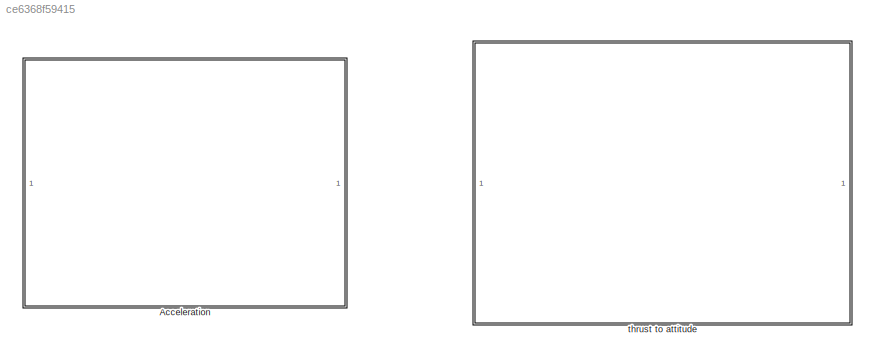
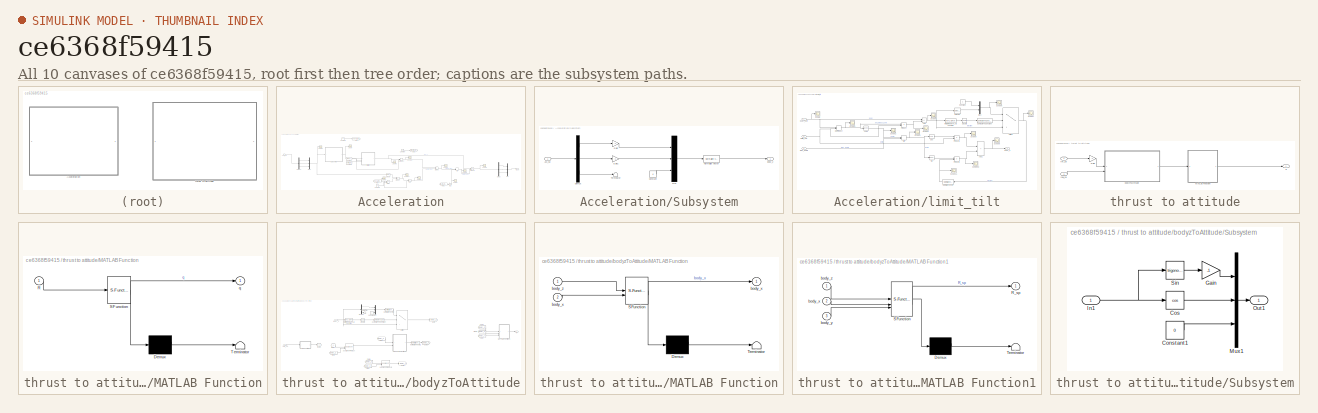
[diagram: thumbnail index - all 10 canvases of the model, root first then tree order]
MODEL slx_ce6368f59415
KIND model
CONFIG AbsTol = auto
CONFIG EnableMultiTasking = off
CONFIG FixedStep = auto
CONFIG MaxStep = auto
CONFIG MinStep = auto
CONFIG RelTol = 1e-3
CONFIG SampleTimeConstraint = Unconstrained
CONFIG SolverName = VariableStepAuto
CONFIG StartTime = 0.0
CONFIG StopTime = 10.0
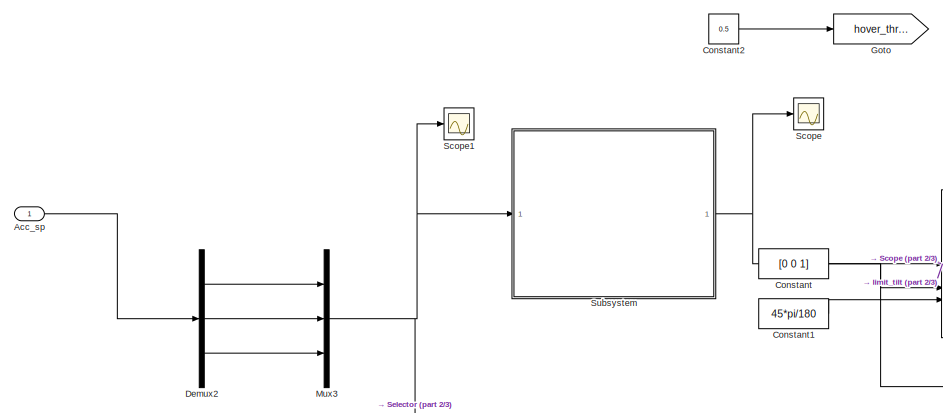
[diagram: Acceleration - part 1/3, middle left region]
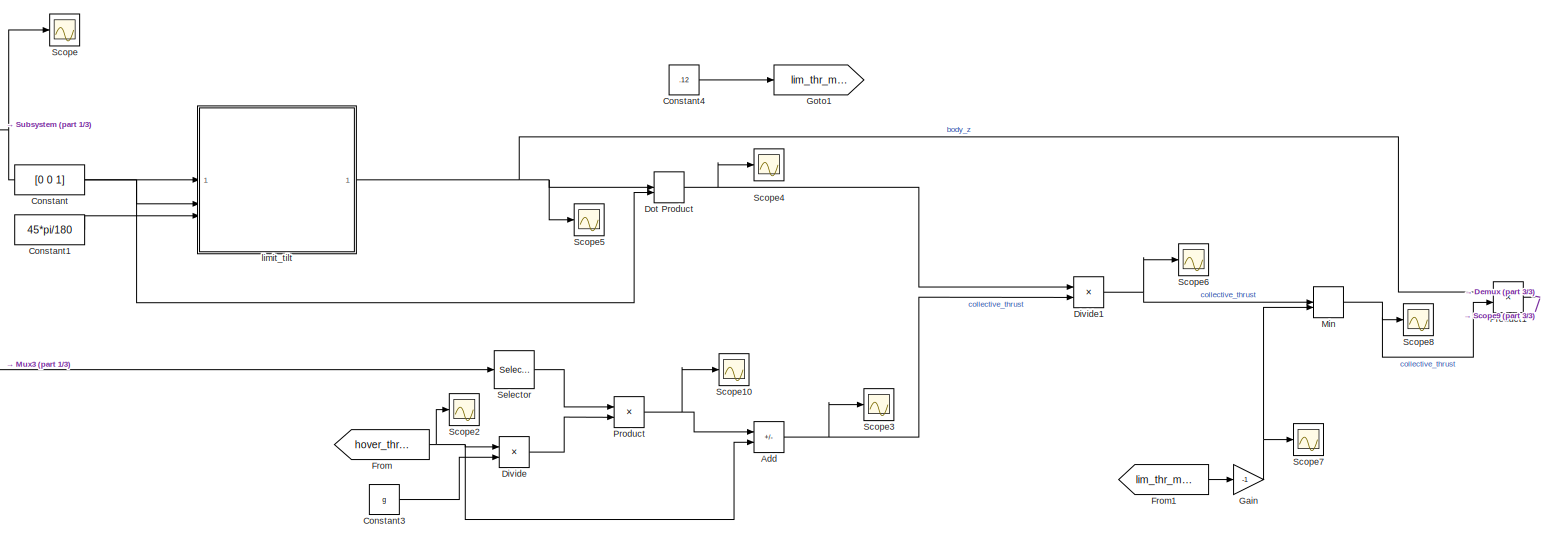
[diagram: Acceleration - part 2/3, center side, full height]
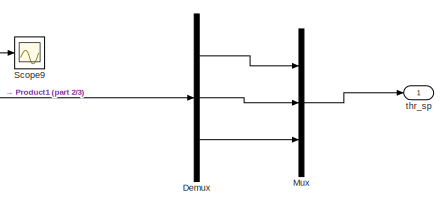
[diagram: Acceleration - part 3/3, middle right region]
BLOCK [SubSystem] Acceleration
BLOCK [Inport] Acceleration/Acc_sp
BLOCK [Sum] Acceleration/Add
  IconShape = rectangular
  Inputs = +-
BLOCK [Constant] Acceleration/Constant
  Value = [0 0 1]
BLOCK [Constant] Acceleration/Constant1
  Value = 45*pi/180
BLOCK [Constant] Acceleration/Constant2
  Value = 0.5
BLOCK [Constant] Acceleration/Constant3
  Value = g
BLOCK [Constant] Acceleration/Constant4
  Value = .12
BLOCK [Demux] Acceleration/Demux
  Outputs = 3
BLOCK [Demux] Acceleration/Demux2
  Outputs = 3
BLOCK [Product] Acceleration/Divide
  Inputs = */
BLOCK [Product] Acceleration/Divide1
  Inputs = /*
BLOCK [DotProduct] Acceleration/Dot Product
  OutDataTypeStr = Inherit: Inherit via internal rule
BLOCK [From] Acceleration/From
  GotoTag = hover_thrust
  TagVisibility = global
BLOCK [From] Acceleration/From1
  GotoTag = lim_thr_min
  TagVisibility = global
BLOCK [Gain] Acceleration/Gain
  Gain = -1
BLOCK [Goto] Acceleration/Goto
  GotoTag = hover_thrust
  TagVisibility = global
BLOCK [Goto] Acceleration/Goto1
  GotoTag = lim_thr_min
  TagVisibility = global
BLOCK [MinMax] Acceleration/Min
  Inputs = 2
BLOCK [Mux] Acceleration/Mux
  DisplayOption = bar
  Inputs = 3
BLOCK [Mux] Acceleration/Mux3
  DisplayOption = bar
  Inputs = 3
BLOCK [Product] Acceleration/Product
BLOCK [Product] Acceleration/Product1
BLOCK [Scope] Acceleration/Scope
  Floating = off
  NumInputPorts = 1
  ScopeSpecificationString = Simulink.scopes.TimeScopeBlockCfg('CurrentConfiguration', extmgr.ConfigurationSet(extmgr.Configuration('Core','General UI',true),extmgr.Configuration('Core','Source UI',true),extmgr.Configuration('Sources','WiredSimulink',true,'DataLoggingVariableName','ScopeData9'),extmgr.Configuration('Visuals','Time Domain',true,'SerializedDisplays',{struct('MinYLimReal','-0.125','MaxYLimReal','1.125','YLabelRe...<+1748ch>
BLOCK [Scope] Acceleration/Scope1
  Floating = off
  NumInputPorts = 1
  ScopeSpecificationString = Simulink.scopes.TimeScopeBlockCfg('CurrentConfiguration', extmgr.ConfigurationSet(extmgr.Configuration('Core','General UI',true),extmgr.Configuration('Core','Source UI',true),extmgr.Configuration('Sources','WiredSimulink',true,'DataLoggingVariableName','ScopeData10'),extmgr.Configuration('Visuals','Time Domain',true,'SerializedDisplays',{struct('MinYLimReal','-882.88599','MaxYLimReal','102.54289',...<+1744ch>
BLOCK [Scope] Acceleration/Scope10
  Floating = off
  NumInputPorts = 1
  ScopeSpecificationString = Simulink.scopes.TimeScopeBlockCfg('CurrentConfiguration', extmgr.ConfigurationSet(extmgr.Configuration('Core','General UI',true),extmgr.Configuration('Core','Source UI',true),extmgr.Configuration('Sources','WiredSimulink',true,'DataLoggingVariableName','ScopeData33'),extmgr.Configuration('Visuals','Time Domain',true,'SerializedDisplays',{struct('MinYLimReal','-45.0452','MaxYLimReal','5.23178','YLa...<+1677ch>
BLOCK [Scope] Acceleration/Scope2
  Floating = off
  NumInputPorts = 1
  ScopeSpecificationString = Simulink.scopes.TimeScopeBlockCfg('CurrentConfiguration', extmgr.ConfigurationSet(extmgr.Configuration('Core','General UI',true),extmgr.Configuration('Core','Source UI',true),extmgr.Configuration('Sources','WiredSimulink',true,'DataLoggingVariableName','ScopeData19'),extmgr.Configuration('Visuals','Time Domain',true,'SerializedDisplays',{struct('MinYLimReal','0.4','MaxYLimReal','0.6','YLabelReal',...<+1667ch>
BLOCK [Scope] Acceleration/Scope3
  Floating = off
  NumInputPorts = 1
  ScopeSpecificationString = Simulink.scopes.TimeScopeBlockCfg('CurrentConfiguration', extmgr.ConfigurationSet(extmgr.Configuration('Core','General UI',true),extmgr.Configuration('Core','Source UI',true),extmgr.Configuration('Sources','WiredSimulink',true,'DataLoggingVariableName','ScopeData24'),extmgr.Configuration('Visuals','Time Domain',true,'SerializedDisplays',{struct('MinYLimReal','-4.92384','MaxYLimReal','0.2183','YLab...<+1687ch>
BLOCK [Scope] Acceleration/Scope4
  Floating = off
  NumInputPorts = 1
  ScopeSpecificationString = Simulink.scopes.TimeScopeBlockCfg('CurrentConfiguration', extmgr.ConfigurationSet(extmgr.Configuration('Core','General UI',true),extmgr.Configuration('Core','Source UI',true),extmgr.Configuration('Sources','WiredSimulink',true,'DataLoggingVariableName','ScopeData25'),extmgr.Configuration('Visuals','Time Domain',true,'SerializedDisplays',{struct('MinYLimReal','0.9','MaxYLimReal','1.1','YLabelReal',...<+1337ch>
BLOCK [Scope] Acceleration/Scope5
  Floating = off
  NumInputPorts = 1
  ScopeSpecificationString = Simulink.scopes.TimeScopeBlockCfg('CurrentConfiguration', extmgr.ConfigurationSet(extmgr.Configuration('Core','General UI',true),extmgr.Configuration('Core','Source UI',true),extmgr.Configuration('Sources','WiredSimulink',true,'DataLoggingVariableName','ScopeData26'),extmgr.Configuration('Visuals','Time Domain',true),extmgr.Configuration('Tools','Plot Navigation',true),extmgr.Configuration('Tools'...<+41ch>
BLOCK [Scope] Acceleration/Scope6
  Floating = off
  NumInputPorts = 1
  ScopeSpecificationString = Simulink.scopes.TimeScopeBlockCfg('CurrentConfiguration', extmgr.ConfigurationSet(extmgr.Configuration('Core','General UI',true),extmgr.Configuration('Core','Source UI',true),extmgr.Configuration('Sources','WiredSimulink',true,'DataLoggingVariableName','ScopeData27'),extmgr.Configuration('Visuals','Time Domain',true,'SerializedDisplays',{struct('MinYLimReal','-4.92384','MaxYLimReal','0.2183','YLab...<+1687ch>
BLOCK [Scope] Acceleration/Scope7
  Floating = off
  NumInputPorts = 1
  ScopeSpecificationString = Simulink.scopes.TimeScopeBlockCfg('CurrentConfiguration', extmgr.ConfigurationSet(extmgr.Configuration('Core','General UI',true),extmgr.Configuration('Core','Source UI',true),extmgr.Configuration('Sources','WiredSimulink',true,'DataLoggingVariableName','ScopeData28'),extmgr.Configuration('Visuals','Time Domain',true,'SerializedDisplays',{struct('MinYLimReal','-0.22','MaxYLimReal','-0.02','YLabelRe...<+1383ch>
BLOCK [Scope] Acceleration/Scope8
  Floating = off
  NumInputPorts = 1
  ScopeSpecificationString = Simulink.scopes.TimeScopeBlockCfg('CurrentConfiguration', extmgr.ConfigurationSet(extmgr.Configuration('Core','General UI',true),extmgr.Configuration('Core','Source UI',true),extmgr.Configuration('Sources','WiredSimulink',true,'DataLoggingVariableName','ScopeData29'),extmgr.Configuration('Visuals','Time Domain',true,'SerializedDisplays',{struct('MinYLimReal','-4.92384','MaxYLimReal','0.2183','YLab...<+1687ch>
BLOCK [Scope] Acceleration/Scope9
  Floating = off
  NumInputPorts = 1
  ScopeSpecificationString = Simulink.scopes.TimeScopeBlockCfg('CurrentConfiguration', extmgr.ConfigurationSet(extmgr.Configuration('Core','General UI',true),extmgr.Configuration('Core','Source UI',true),extmgr.Configuration('Sources','WiredSimulink',true,'DataLoggingVariableName','ScopeData30'),extmgr.Configuration('Visuals','Time Domain',true,'SerializedDisplays',{struct('MinYLimReal','-4.96083','MaxYLimReal','0.5512','YLab...<+1739ch>
BLOCK [Selector] Acceleration/Selector
  IndexOptions = Index vector (dialog)
  Indices = [3]
  InputPortWidth = 3
  OutputSizes = 1
BLOCK [SubSystem] Acceleration/Subsystem
BLOCK [Inport] Acceleration/Subsystem/Acc_sp
BLOCK [Constant] Acceleration/Subsystem/Constant
  Value = g
BLOCK [Demux] Acceleration/Subsystem/Demux
  Outputs = 3
BLOCK [Gain] Acceleration/Subsystem/Gain
  Gain = -1
BLOCK [Gain] Acceleration/Subsystem/Gain1
  Gain = -1
BLOCK [Mux] Acceleration/Subsystem/Mux
  DisplayOption = bar
  Inputs = 3
BLOCK [Reference] Acceleration/Subsystem/Normalize Vector  REF=vrlib/Utilities/Normalize Vector
  SourceBlock = vrlib/Utilities/Normalize Vector
  SourceType = Normalize Vector
BLOCK [Terminator] Acceleration/Subsystem/Terminator
BLOCK [Outport] Acceleration/Subsystem/body_z
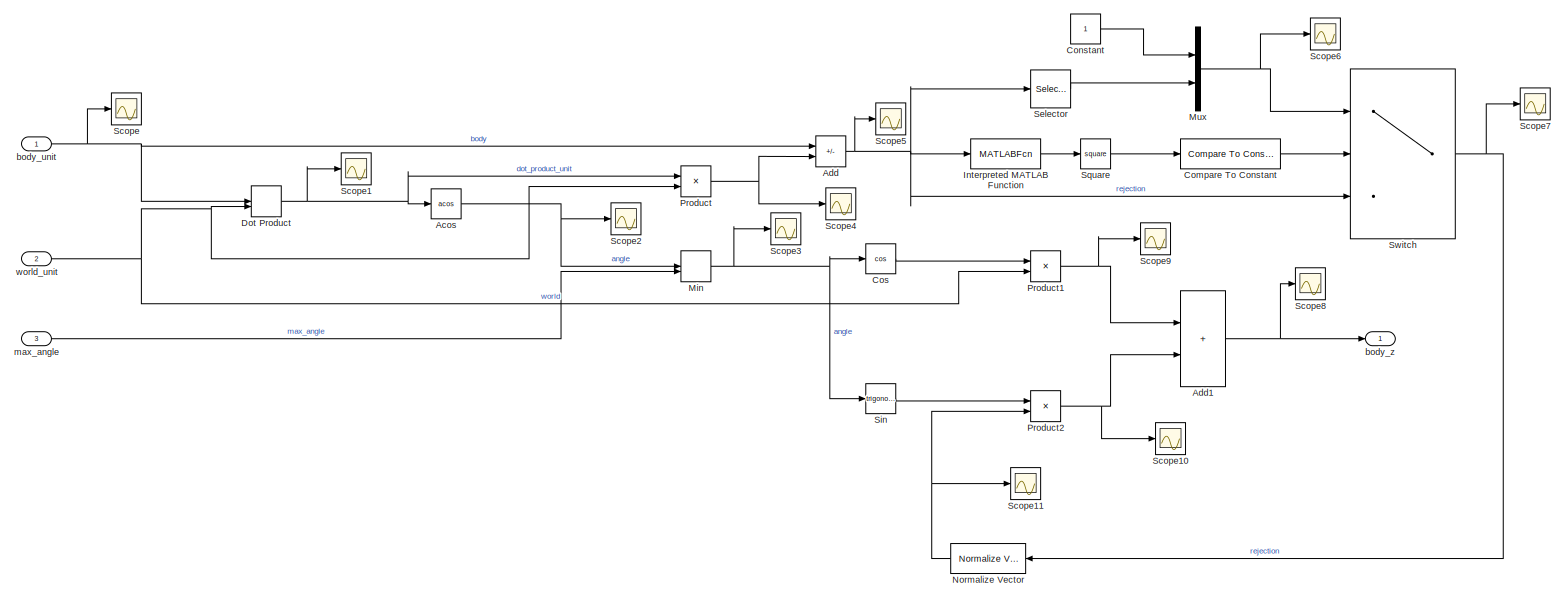
[diagram: Acceleration/limit_tilt - part 1/1, most of the canvas]
BLOCK [SubSystem] Acceleration/limit_tilt
BLOCK [Trigonometry] Acceleration/limit_tilt/Acos
  Operator = acos
BLOCK [Sum] Acceleration/limit_tilt/Add
  IconShape = rectangular
  Inputs = +-
BLOCK [Sum] Acceleration/limit_tilt/Add1
  IconShape = rectangular
BLOCK [Reference] Acceleration/limit_tilt/Compare To Constant  REF=simulink/Logic and Bit
Operations/Compare
To Constant
  SourceBlock = simulink/Logic and Bit\nOperations/Compare\nTo Constant
  SourceType = Compare To Constant
BLOCK [Constant] Acceleration/limit_tilt/Constant
BLOCK [Trigonometry] Acceleration/limit_tilt/Cos
  Operator = cos
BLOCK [DotProduct] Acceleration/limit_tilt/Dot Product
  OutDataTypeStr = Inherit: Inherit via internal rule
BLOCK [MATLABFcn] Acceleration/limit_tilt/Interpreted MATLAB Function
  MATLABFcn = norm
BLOCK [MinMax] Acceleration/limit_tilt/Min
  Inputs = 2
BLOCK [Mux] Acceleration/limit_tilt/Mux
  DisplayOption = bar
  Inputs = 2
BLOCK [Reference] Acceleration/limit_tilt/Normalize Vector  REF=vrlib/Utilities/Normalize Vector
  NameLocation = top
  SourceBlock = vrlib/Utilities/Normalize Vector
  SourceType = Normalize Vector
BLOCK [Product] Acceleration/limit_tilt/Product
BLOCK [Product] Acceleration/limit_tilt/Product1
BLOCK [Product] Acceleration/limit_tilt/Product2
BLOCK [Scope] Acceleration/limit_tilt/Scope
  Floating = off
  NumInputPorts = 1
  ScopeSpecificationString = Simulink.scopes.TimeScopeBlockCfg('CurrentConfiguration', extmgr.ConfigurationSet(extmgr.Configuration('Core','General UI',true),extmgr.Configuration('Core','Source UI',true),extmgr.Configuration('Sources','WiredSimulink',true,'DataLoggingVariableName','ScopeData11'),extmgr.Configuration('Visuals','Time Domain',true,'SerializedDisplays',{struct('MinYLimReal','-0.125','MaxYLimReal','1.125','YLabelR...<+1715ch>
BLOCK [Scope] Acceleration/limit_tilt/Scope1
  Floating = off
  NumInputPorts = 1
  ScopeSpecificationString = Simulink.scopes.TimeScopeBlockCfg('CurrentConfiguration', extmgr.ConfigurationSet(extmgr.Configuration('Core','General UI',true),extmgr.Configuration('Core','Source UI',true),extmgr.Configuration('Sources','WiredSimulink',true,'DataLoggingVariableName','ScopeData12'),extmgr.Configuration('Visuals','Time Domain',true,'SerializedDisplays',{struct('MinYLimReal','0.9','MaxYLimReal','1.1','YLabelReal',...<+1342ch>
BLOCK [Scope] Acceleration/limit_tilt/Scope10
  Floating = off
  NumInputPorts = 1
  ScopeSpecificationString = Simulink.scopes.TimeScopeBlockCfg('CurrentConfiguration', extmgr.ConfigurationSet(extmgr.Configuration('Core','General UI',true),extmgr.Configuration('Core','Source UI',true),extmgr.Configuration('Sources','WiredSimulink',true,'DataLoggingVariableName','ScopeData22'),extmgr.Configuration('Visuals','Time Domain',true),extmgr.Configuration('Tools','Plot Navigation',true),extmgr.Configuration('Tools'...<+41ch>
BLOCK [Scope] Acceleration/limit_tilt/Scope11
  Floating = off
  NumInputPorts = 1
  ScopeSpecificationString = Simulink.scopes.TimeScopeBlockCfg('CurrentConfiguration', extmgr.ConfigurationSet(extmgr.Configuration('Core','General UI',true),extmgr.Configuration('Core','Source UI',true),extmgr.Configuration('Sources','WiredSimulink',true,'DataLoggingVariableName','ScopeData23'),extmgr.Configuration('Visuals','Time Domain',true),extmgr.Configuration('Tools','Plot Navigation',true),extmgr.Configuration('Tools'...<+41ch>
BLOCK [Scope] Acceleration/limit_tilt/Scope2
  Floating = off
  NumInputPorts = 1
  ScopeSpecificationString = Simulink.scopes.TimeScopeBlockCfg('CurrentConfiguration', extmgr.ConfigurationSet(extmgr.Configuration('Core','General UI',true),extmgr.Configuration('Core','Source UI',true),extmgr.Configuration('Sources','WiredSimulink',true,'DataLoggingVariableName','ScopeData13'),extmgr.Configuration('Visuals','Time Domain',true,'SerializedDisplays',{struct('MinYLimReal','-1.00000','MaxYLimReal','1.00000','YLa...<+1365ch>
BLOCK [Scope] Acceleration/limit_tilt/Scope3
  Floating = off
  NumInputPorts = 1
  ScopeSpecificationString = Simulink.scopes.TimeScopeBlockCfg('CurrentConfiguration', extmgr.ConfigurationSet(extmgr.Configuration('Core','General UI',true),extmgr.Configuration('Core','Source UI',true),extmgr.Configuration('Sources','WiredSimulink',true,'DataLoggingVariableName','ScopeData14'),extmgr.Configuration('Visuals','Time Domain',true,'SerializedDisplays',{struct('MinYLimReal','-1.00000','MaxYLimReal','1.00000','YLa...<+1365ch>
BLOCK [Scope] Acceleration/limit_tilt/Scope4
  Floating = off
  NumInputPorts = 1
  ScopeSpecificationString = Simulink.scopes.TimeScopeBlockCfg('CurrentConfiguration', extmgr.ConfigurationSet(extmgr.Configuration('Core','General UI',true),extmgr.Configuration('Core','Source UI',true),extmgr.Configuration('Sources','WiredSimulink',true,'DataLoggingVariableName','ScopeData15'),extmgr.Configuration('Visuals','Time Domain',true,'SerializedDisplays',{struct('MinYLimReal','-0.125','MaxYLimReal','1.125','YLabelR...<+1726ch>
BLOCK [Scope] Acceleration/limit_tilt/Scope5
  Floating = off
  NumInputPorts = 1
  ScopeSpecificationString = Simulink.scopes.TimeScopeBlockCfg('CurrentConfiguration', extmgr.ConfigurationSet(extmgr.Configuration('Core','General UI',true),extmgr.Configuration('Core','Source UI',true),extmgr.Configuration('Sources','WiredSimulink',true,'DataLoggingVariableName','ScopeData16'),extmgr.Configuration('Visuals','Time Domain',true,'SerializedDisplays',{struct('MinYLimReal','-0.0000000000035','MaxYLimReal','0.000...<+1488ch>
BLOCK [Scope] Acceleration/limit_tilt/Scope6
  Floating = off
  NumInputPorts = 1
  ScopeSpecificationString = Simulink.scopes.TimeScopeBlockCfg('CurrentConfiguration', extmgr.ConfigurationSet(extmgr.Configuration('Core','General UI',true),extmgr.Configuration('Core','Source UI',true),extmgr.Configuration('Sources','WiredSimulink',true,'DataLoggingVariableName','ScopeData17'),extmgr.Configuration('Visuals','Time Domain',true,'SerializedDisplays',{struct('MinYLimReal','-0.125','MaxYLimReal','1.125','YLabelR...<+1740ch>
BLOCK [Scope] Acceleration/limit_tilt/Scope7
  Floating = off
  NumInputPorts = 1
  ScopeSpecificationString = Simulink.scopes.TimeScopeBlockCfg('CurrentConfiguration', extmgr.ConfigurationSet(extmgr.Configuration('Core','General UI',true),extmgr.Configuration('Core','Source UI',true),extmgr.Configuration('Sources','WiredSimulink',true,'DataLoggingVariableName','ScopeData18'),extmgr.Configuration('Visuals','Time Domain',true,'SerializedDisplays',{struct('MinYLimReal','-0.125','MaxYLimReal','1.125','YLabelR...<+1730ch>
BLOCK [Scope] Acceleration/limit_tilt/Scope8
  Floating = off
  NumInputPorts = 1
  ScopeSpecificationString = Simulink.scopes.TimeScopeBlockCfg('CurrentConfiguration', extmgr.ConfigurationSet(extmgr.Configuration('Core','General UI',true),extmgr.Configuration('Core','Source UI',true),extmgr.Configuration('Sources','WiredSimulink',true,'DataLoggingVariableName','ScopeData20'),extmgr.Configuration('Visuals','Time Domain',true),extmgr.Configuration('Tools','Plot Navigation',true),extmgr.Configuration('Tools'...<+41ch>
BLOCK [Scope] Acceleration/limit_tilt/Scope9
  Floating = off
  NumInputPorts = 1
  ScopeSpecificationString = Simulink.scopes.TimeScopeBlockCfg('CurrentConfiguration', extmgr.ConfigurationSet(extmgr.Configuration('Core','General UI',true),extmgr.Configuration('Core','Source UI',true),extmgr.Configuration('Sources','WiredSimulink',true,'DataLoggingVariableName','ScopeData21'),extmgr.Configuration('Visuals','Time Domain',true,'SerializedDisplays',{struct('MinYLimReal','-0.125','MaxYLimReal','1.125','YLabelR...<+1409ch>
BLOCK [Selector] Acceleration/limit_tilt/Selector
  IndexOptions = Index vector (dialog)
  Indices = [2 3]
  InputPortWidth = 3
  OutputSizes = 1
BLOCK [Trigonometry] Acceleration/limit_tilt/Sin
BLOCK [Math] Acceleration/limit_tilt/Square
  Operator = square
BLOCK [Switch] Acceleration/limit_tilt/Switch
  Criteria = u2 ~= 0
  InputSameDT = off
  SaturateOnIntegerOverflow = off
BLOCK [Inport] Acceleration/limit_tilt/body_unit
BLOCK [Outport] Acceleration/limit_tilt/body_z
BLOCK [Inport] Acceleration/limit_tilt/max_angle
  Port = 3
BLOCK [Inport] Acceleration/limit_tilt/world_unit
  Port = 2
BLOCK [Outport] Acceleration/thr_sp
BLOCK [SubSystem] thrust to attitude
BLOCK [Gain] thrust to attitude/Gain
  Gain = -1
BLOCK [SubSystem] thrust to attitude/MATLAB Function
  ErrorFcn = Stateflow.Translate.translate
  LibrarySourceBlock = simulink/User-Defined\nFunctions/MATLAB Function
  PermitHierarchicalResolution = ExplicitOnly
  SFBlockType = MATLAB Function
  TreatAsAtomicUnit = on
BLOCK [Demux] thrust to attitude/MATLAB Function/ Demux 
  Outputs = 1
BLOCK [S-Function] thrust to attitude/MATLAB Function/ SFunction 
  EnableBusSupport = on
  FunctionName = sf_sfun
  PortCounts = [1 2]
  SFcnIsStateOwnerBlock = off
  SFunctionDeploymentMode = off
  Tag = Stateflow S-Function 14
BLOCK [Terminator] thrust to attitude/MATLAB Function/ Terminator 
BLOCK [Inport] thrust to attitude/MATLAB Function/R
BLOCK [Outport] thrust to attitude/MATLAB Function/q
BLOCK [SubSystem] thrust to attitude/bodyzToAttitude
BLOCK [Reference] thrust to attitude/bodyzToAttitude/3x3 Cross Product  REF=sharedutil/3x3 Cross Product
  LibrarySourceBlock = aerolibutil/3x3 Cross Product
  SourceBlock = sharedutil/3x3 Cross Product
  SourceType = CrossProduct
BLOCK [Reference] thrust to attitude/bodyzToAttitude/3x3 Cross Product1  REF=sharedutil/3x3 Cross Product
  LibrarySourceBlock = aerolibutil/3x3 Cross Product
  SourceBlock = sharedutil/3x3 Cross Product
  SourceType = CrossProduct
BLOCK [Reference] thrust to attitude/bodyzToAttitude/Compare To Constant  REF=simulink/Logic and Bit
Operations/Compare
To Constant
  SourceBlock = simulink/Logic and Bit\nOperations/Compare\nTo Constant
  SourceType = Compare To Constant
BLOCK [Constant] thrust to attitude/bodyzToAttitude/Constant
BLOCK [Demux] thrust to attitude/bodyzToAttitude/Demux
  Outputs = 3
BLOCK [From] thrust to attitude/bodyzToAttitude/From
  GotoTag = body_z
BLOCK [From] thrust to attitude/bodyzToAttitude/From1
  GotoTag = y_c
BLOCK [From] thrust to attitude/bodyzToAttitude/From2
  GotoTag = body_z
BLOCK [From] thrust to attitude/bodyzToAttitude/From3
  GotoTag = body_z
BLOCK [From] thrust to attitude/bodyzToAttitude/From4
  GotoTag = body_x
BLOCK [From] thrust to attitude/bodyzToAttitude/From5
  GotoTag = body_z
BLOCK [From] thrust to attitude/bodyzToAttitude/From6
  GotoTag = body_x
BLOCK [From] thrust to attitude/bodyzToAttitude/From7
  GotoTag = body_y
BLOCK [Goto] thrust to attitude/bodyzToAttitude/Goto
  GotoTag = body_z
BLOCK [Goto] thrust to attitude/bodyzToAttitude/Goto1
  GotoTag = y_c
BLOCK [Goto] thrust to attitude/bodyzToAttitude/Goto2
  GotoTag = body_y
BLOCK [Goto] thrust to attitude/bodyzToAttitude/Goto3
  GotoTag = body_x
BLOCK [MATLABFcn] thrust to attitude/bodyzToAttitude/Interpreted MATLAB Function
  MATLABFcn = norm
BLOCK [SubSystem] thrust to attitude/bodyzToAttitude/MATLAB Function
  ErrorFcn = Stateflow.Translate.translate
  PermitHierarchicalResolution = ExplicitOnly
  SFBlockType = MATLAB Function
  TreatAsAtomicUnit = on
BLOCK [Demux] thrust to attitude/bodyzToAttitude/MATLAB Function/ Demux 
  Outputs = 1
BLOCK [S-Function] thrust to attitude/bodyzToAttitude/MATLAB Function/ SFunction 
  EnableBusSupport = on
  FunctionName = sf_sfun
  PortCounts = [2 2]
  SFcnIsStateOwnerBlock = off
  SFunctionDeploymentMode = off
  Tag = Stateflow S-Function 12
BLOCK [Terminator] thrust to attitude/bodyzToAttitude/MATLAB Function/ Terminator 
BLOCK [Outport] thrust to attitude/bodyzToAttitude/MATLAB Function/body_x
BLOCK [Inport] thrust to attitude/bodyzToAttitude/MATLAB Function/body_x 
  Port = 2
BLOCK [Inport] thrust to attitude/bodyzToAttitude/MATLAB Function/body_z
BLOCK [SubSystem] thrust to attitude/bodyzToAttitude/MATLAB Function1
  ErrorFcn = Stateflow.Translate.translate
  PermitHierarchicalResolution = ExplicitOnly
  SFBlockType = MATLAB Function
  TreatAsAtomicUnit = on
BLOCK [Demux] thrust to attitude/bodyzToAttitude/MATLAB Function1/ Demux 
  Outputs = 1
BLOCK [S-Function] thrust to attitude/bodyzToAttitude/MATLAB Function1/ SFunction 
  EnableBusSupport = on
  FunctionName = sf_sfun
  PortCounts = [3 2]
  SFcnIsStateOwnerBlock = off
  SFunctionDeploymentMode = off
  Tag = Stateflow S-Function 13
BLOCK [Terminator] thrust to attitude/bodyzToAttitude/MATLAB Function1/ Terminator 
BLOCK [Outport] thrust to attitude/bodyzToAttitude/MATLAB Function1/R_sp
BLOCK [Inport] thrust to attitude/bodyzToAttitude/MATLAB Function1/body_x
  Port = 2
BLOCK [Inport] thrust to attitude/bodyzToAttitude/MATLAB Function1/body_y
  Port = 3
BLOCK [Inport] thrust to attitude/bodyzToAttitude/MATLAB Function1/body_z
BLOCK [Mux] thrust to attitude/bodyzToAttitude/Mux
  DisplayOption = bar
  Inputs = 3
BLOCK [Reference] thrust to attitude/bodyzToAttitude/Normalize Vector1  REF=vrlib/Utilities/Normalize Vector
  SourceBlock = vrlib/Utilities/Normalize Vector
  SourceType = Normalize Vector
BLOCK [Reference] thrust to attitude/bodyzToAttitude/Normalize Vector2  REF=vrlib/Utilities/Normalize Vector
  SourceBlock = vrlib/Utilities/Normalize Vector
  SourceType = Normalize Vector
BLOCK [Outport] thrust to attitude/bodyzToAttitude/R
BLOCK [Math] thrust to attitude/bodyzToAttitude/Square
  Operator = square
BLOCK [SubSystem] thrust to attitude/bodyzToAttitude/Subsystem
BLOCK [Constant] thrust to attitude/bodyzToAttitude/Subsystem/Constant1
  Value = 0
BLOCK [Trigonometry] thrust to attitude/bodyzToAttitude/Subsystem/Cos
  Operator = cos
BLOCK [Gain] thrust to attitude/bodyzToAttitude/Subsystem/Gain
  Gain = -1
BLOCK [Inport] thrust to attitude/bodyzToAttitude/Subsystem/In1
BLOCK [Mux] thrust to attitude/bodyzToAttitude/Subsystem/Mux1
  DisplayOption = bar
  Inputs = 3
BLOCK [Outport] thrust to attitude/bodyzToAttitude/Subsystem/Out1
BLOCK [Trigonometry] thrust to attitude/bodyzToAttitude/Subsystem/Sin
BLOCK [Switch] thrust to attitude/bodyzToAttitude/Switch
  Criteria = u2 ~= 0
  InputSameDT = off
  SaturateOnIntegerOverflow = off
BLOCK [Terminator] thrust to attitude/bodyzToAttitude/Terminator
BLOCK [Inport] thrust to attitude/bodyzToAttitude/body_z
BLOCK [Inport] thrust to attitude/bodyzToAttitude/yaw_sp
  Port = 2
BLOCK [Outport] thrust to attitude/q
BLOCK [Inport] thrust to attitude/thr_sp
BLOCK [Inport] thrust to attitude/yaw_sp
  Port = 2
LINE Acceleration/Acc_sp:1 -> Acceleration/Demux2:1
NET Acceleration/Add:1 -> Acceleration/Divide1:2, Acceleration/Scope3:1
LINE Acceleration/Constant1:1 -> Acceleration/limit_tilt:3
LINE Acceleration/Constant2:1 -> Acceleration/Goto:1
LINE Acceleration/Constant3:1 -> Acceleration/Divide:2
LINE Acceleration/Constant4:1 -> Acceleration/Goto1:1
NET Acceleration/Constant:1 -> Acceleration/Dot Product:2, Acceleration/limit_tilt:2
LINE Acceleration/Demux2:1 -> Acceleration/Mux3:1
LINE Acceleration/Demux2:2 -> Acceleration/Mux3:2
LINE Acceleration/Demux2:3 -> Acceleration/Mux3:3
LINE Acceleration/Demux:1 -> Acceleration/Mux:1
LINE Acceleration/Demux:2 -> Acceleration/Mux:2
LINE Acceleration/Demux:3 -> Acceleration/Mux:3
NET Acceleration/Divide1:1 -> Acceleration/Min:1, Acceleration/Scope6:1
LINE Acceleration/Divide:1 -> Acceleration/Product:2
NET Acceleration/Dot Product:1 -> Acceleration/Divide1:1, Acceleration/Scope4:1
LINE Acceleration/From1:1 -> Acceleration/Gain:1
NET Acceleration/From:1 -> Acceleration/Add:2, Acceleration/Divide:1, Acceleration/Scope2:1
NET Acceleration/Gain:1 -> Acceleration/Min:2, Acceleration/Scope7:1
NET Acceleration/Min:1 -> Acceleration/Product1:2, Acceleration/Scope8:1
NET Acceleration/Mux3:1 -> Acceleration/Scope1:1, Acceleration/Selector:1, Acceleration/Subsystem:1
LINE Acceleration/Mux:1 -> Acceleration/thr_sp:1
NET Acceleration/Product1:1 -> Acceleration/Demux:1, Acceleration/Scope9:1
NET Acceleration/Product:1 -> Acceleration/Add:1, Acceleration/Scope10:1
LINE Acceleration/Selector:1 -> Acceleration/Product:1
LINE Acceleration/Subsystem/Acc_sp:1 -> Acceleration/Subsystem/Demux:1
LINE Acceleration/Subsystem/Constant:1 -> Acceleration/Subsystem/Mux:3
LINE Acceleration/Subsystem/Demux:1 -> Acceleration/Subsystem/Gain:1
LINE Acceleration/Subsystem/Demux:2 -> Acceleration/Subsystem/Gain1:1
LINE Acceleration/Subsystem/Demux:3 -> Acceleration/Subsystem/Terminator:1
LINE Acceleration/Subsystem/Gain1:1 -> Acceleration/Subsystem/Mux:2
LINE Acceleration/Subsystem/Gain:1 -> Acceleration/Subsystem/Mux:1
LINE Acceleration/Subsystem/Mux:1 -> Acceleration/Subsystem/Normalize Vector:1
LINE Acceleration/Subsystem/Normalize Vector:1 -> Acceleration/Subsystem/body_z:1
NET Acceleration/Subsystem:1 -> Acceleration/Scope:1, Acceleration/limit_tilt:1
NET Acceleration/limit_tilt/Acos:1 -> Acceleration/limit_tilt/Min:1, Acceleration/limit_tilt/Scope2:1
NET Acceleration/limit_tilt/Add1:1 -> Acceleration/limit_tilt/Scope8:1, Acceleration/limit_tilt/body_z:1
NET Acceleration/limit_tilt/Add:1 -> Acceleration/limit_tilt/Interpreted MATLAB Function:1, Acceleration/limit_tilt/Scope5:1, Acceleration/limit_tilt/Selector:1, Acceleration/limit_tilt/Switch:3
LINE Acceleration/limit_tilt/Compare To Constant:1 -> Acceleration/limit_tilt/Switch:2
LINE Acceleration/limit_tilt/Constant:1 -> Acceleration/limit_tilt/Mux:1
LINE Acceleration/limit_tilt/Cos:1 -> Acceleration/limit_tilt/Product1:1
NET Acceleration/limit_tilt/Dot Product:1 -> Acceleration/limit_tilt/Acos:1, Acceleration/limit_tilt/Product:1, Acceleration/limit_tilt/Scope1:1
LINE Acceleration/limit_tilt/Interpreted MATLAB Function:1 -> Acceleration/limit_tilt/Square:1
NET Acceleration/limit_tilt/Min:1 -> Acceleration/limit_tilt/Cos:1, Acceleration/limit_tilt/Scope3:1, Acceleration/limit_tilt/Sin:1
NET Acceleration/limit_tilt/Mux:1 -> Acceleration/limit_tilt/Scope6:1, Acceleration/limit_tilt/Switch:1
NET Acceleration/limit_tilt/Normalize Vector:1 -> Acceleration/limit_tilt/Product2:2, Acceleration/limit_tilt/Scope11:1
NET Acceleration/limit_tilt/Product1:1 -> Acceleration/limit_tilt/Add1:1, Acceleration/limit_tilt/Scope9:1
NET Acceleration/limit_tilt/Product2:1 -> Acceleration/limit_tilt/Add1:2, Acceleration/limit_tilt/Scope10:1
NET Acceleration/limit_tilt/Product:1 -> Acceleration/limit_tilt/Add:2, Acceleration/limit_tilt/Scope4:1
LINE Acceleration/limit_tilt/Selector:1 -> Acceleration/limit_tilt/Mux:2
LINE Acceleration/limit_tilt/Sin:1 -> Acceleration/limit_tilt/Product2:1
LINE Acceleration/limit_tilt/Square:1 -> Acceleration/limit_tilt/Compare To Constant:1
NET Acceleration/limit_tilt/Switch:1 -> Acceleration/limit_tilt/Normalize Vector:1, Acceleration/limit_tilt/Scope7:1
NET Acceleration/limit_tilt/body_unit:1 -> Acceleration/limit_tilt/Add:1, Acceleration/limit_tilt/Dot Product:1, Acceleration/limit_tilt/Scope:1
LINE Acceleration/limit_tilt/max_angle:1 -> Acceleration/limit_tilt/Min:2
NET Acceleration/limit_tilt/world_unit:1 -> Acceleration/limit_tilt/Dot Product:2, Acceleration/limit_tilt/Product1:2, Acceleration/limit_tilt/Product:2
NET Acceleration/limit_tilt:1 -> Acceleration/Dot Product:1, Acceleration/Product1:1, Acceleration/Scope5:1
LINE thrust to attitude/Gain:1 -> thrust to attitude/bodyzToAttitude:1
LINE thrust to attitude/MATLAB Function:1 -> thrust to attitude/q:1
LINE thrust to attitude/bodyzToAttitude/3x3 Cross Product1:1 -> thrust to attitude/bodyzToAttitude/Goto2:1
LINE thrust to attitude/bodyzToAttitude/3x3 Cross Product:1 -> thrust to attitude/bodyzToAttitude/MATLAB Function:2
LINE thrust to attitude/bodyzToAttitude/Compare To Constant:1 -> thrust to attitude/bodyzToAttitude/Switch:2
LINE thrust to attitude/bodyzToAttitude/Constant:1 -> thrust to attitude/bodyzToAttitude/Mux:3
LINE thrust to attitude/bodyzToAttitude/Demux:1 -> thrust to attitude/bodyzToAttitude/Mux:1
LINE thrust to attitude/bodyzToAttitude/Demux:2 -> thrust to attitude/bodyzToAttitude/Mux:2
LINE thrust to attitude/bodyzToAttitude/Demux:3 -> thrust to attitude/bodyzToAttitude/Terminator:1
LINE thrust to attitude/bodyzToAttitude/From1:1 -> thrust to attitude/bodyzToAttitude/3x3 Cross Product:1
LINE thrust to attitude/bodyzToAttitude/From2:1 -> thrust to attitude/bodyzToAttitude/MATLAB Function:1
LINE thrust to attitude/bodyzToAttitude/From3:1 -> thrust to attitude/bodyzToAttitude/3x3 Cross Product1:1
LINE thrust to attitude/bodyzToAttitude/From4:1 -> thrust to attitude/bodyzToAttitude/3x3 Cross Product1:2
LINE thrust to attitude/bodyzToAttitude/From5:1 -> thrust to attitude/bodyzToAttitude/MATLAB Function1:1
LINE thrust to attitude/bodyzToAttitude/From6:1 -> thrust to attitude/bodyzToAttitude/MATLAB Function1:2
LINE thrust to attitude/bodyzToAttitude/From7:1 -> thrust to attitude/bodyzToAttitude/MATLAB Function1:3
LINE thrust to attitude/bodyzToAttitude/From:1 -> thrust to attitude/bodyzToAttitude/3x3 Cross Product:2
LINE thrust to attitude/bodyzToAttitude/Interpreted MATLAB Function:1 -> thrust to attitude/bodyzToAttitude/Square:1
LINE thrust to attitude/bodyzToAttitude/MATLAB Function1:1 -> thrust to attitude/bodyzToAttitude/R:1
LINE thrust to attitude/bodyzToAttitude/MATLAB Function:1 -> thrust to attitude/bodyzToAttitude/Normalize Vector1:1
LINE thrust to attitude/bodyzToAttitude/Mux:1 -> thrust to attitude/bodyzToAttitude/Normalize Vector2:1
LINE thrust to attitude/bodyzToAttitude/Normalize Vector1:1 -> thrust to attitude/bodyzToAttitude/Goto3:1
LINE thrust to attitude/bodyzToAttitude/Normalize Vector2:1 -> thrust to attitude/bodyzToAttitude/Switch:1
LINE thrust to attitude/bodyzToAttitude/Square:1 -> thrust to attitude/bodyzToAttitude/Compare To Constant:1
LINE thrust to attitude/bodyzToAttitude/Subsystem/Constant1:1 -> thrust to attitude/bodyzToAttitude/Subsystem/Mux1:3
LINE thrust to attitude/bodyzToAttitude/Subsystem/Cos:1 -> thrust to attitude/bodyzToAttitude/Subsystem/Mux1:2
LINE thrust to attitude/bodyzToAttitude/Subsystem/Gain:1 -> thrust to attitude/bodyzToAttitude/Subsystem/Mux1:1
NET thrust to attitude/bodyzToAttitude/Subsystem/In1:1 -> thrust to attitude/bodyzToAttitude/Subsystem/Cos:1, thrust to attitude/bodyzToAttitude/Subsystem/Sin:1
LINE thrust to attitude/bodyzToAttitude/Subsystem/Mux1:1 -> thrust to attitude/bodyzToAttitude/Subsystem/Out1:1
LINE thrust to attitude/bodyzToAttitude/Subsystem/Sin:1 -> thrust to attitude/bodyzToAttitude/Subsystem/Gain:1
LINE thrust to attitude/bodyzToAttitude/Subsystem:1 -> thrust to attitude/bodyzToAttitude/Goto1:1
LINE thrust to attitude/bodyzToAttitude/Switch:1 -> thrust to attitude/bodyzToAttitude/Goto:1
NET thrust to attitude/bodyzToAttitude/body_z:1 -> thrust to attitude/bodyzToAttitude/Demux:1, thrust to attitude/bodyzToAttitude/Interpreted MATLAB Function:1, thrust to attitude/bodyzToAttitude/Switch:3
LINE thrust to attitude/bodyzToAttitude/yaw_sp:1 -> thrust to attitude/bodyzToAttitude/Subsystem:1
LINE thrust to attitude/bodyzToAttitude:1 -> thrust to attitude/MATLAB Function:1
LINE thrust to attitude/thr_sp:1 -> thrust to attitude/Gain:1
LINE thrust to attitude/yaw_sp:1 -> thrust to attitude/bodyzToAttitude:2
note: NET lines group one-source signal fan-out (src -> all destinations, sorted); 1:1 wires keep LINE
CHART thrust to attitude/bodyzToAttitude/MATLAB Function1 states=1 transitions=1
  STATE_LABEL 'eML_blk_kernel()'
  STATE_LABEL 'SCRIPT:\nfunction R_sp = fcn(body_z,body_x,body_y)\nR_sp=zeros(3,3);\nfor  i =1:3\n\t\tR_sp(i, 1) = body_x(i);\n\t\tR_sp(i, 2) = body_y(i);\n\t\tR_sp(i, 3) = body_z(i);\nend\n'
CHART thrust to attitude/MATLAB Function states=1 transitions=1
  STATE_LABEL 'eML_blk_kernel()'
  STATE_LABEL 'SCRIPT:\nfunction q = fcn(R)\n    q = [0; 0; 0; 1];\n    t = trace(R);\n    if t > 0\n        t = sqrt(1+t);\n        q(1) = 0.5 * t;\n        t = 0.5 / t;\n        q(2) = (R(3,2) - R(2,3))*t;\n        q(3) = (R(1,3) - R(3,1)) * t;\n        q(4) = (R(2,1) - R(1,2)) * t;\n    elseif R(1,1) > R(2,2) && R(1,1) > R(3,3)\n        t = sqrt(1+R(1,1)-R(2,2)-R(3,3));\n        q(2) = 0.5 * t;\n        t = 0.5 / t;\n      ...<+571ch>'
CHART thrust to attitude/bodyzToAttitude/MATLAB Function states=1 transitions=1
  STATE_LABEL 'eML_blk_kernel()'
  STATE_LABEL 'SCRIPT:\nfunction body_x = fcn(body_z, body_x)\n\nif (body_z(3)<0)\n    body_x=-body_x;\nend\n\nif abs(body_z(3)) < 0.000001\n    body_x(1)=0;\n    body_x(2)=0;\n    body_x(3)=1;\n\nend\n\n\n'
CHART  states=0 transitions=0
CHART  states=0 transitions=0
CHART  states=0 transitions=0
